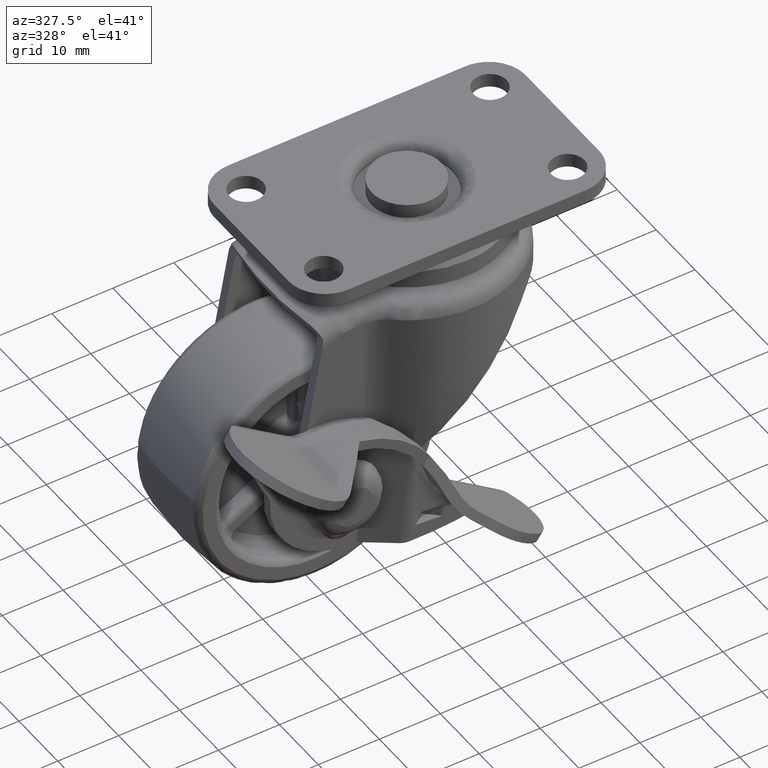
[diagram: clean part render]
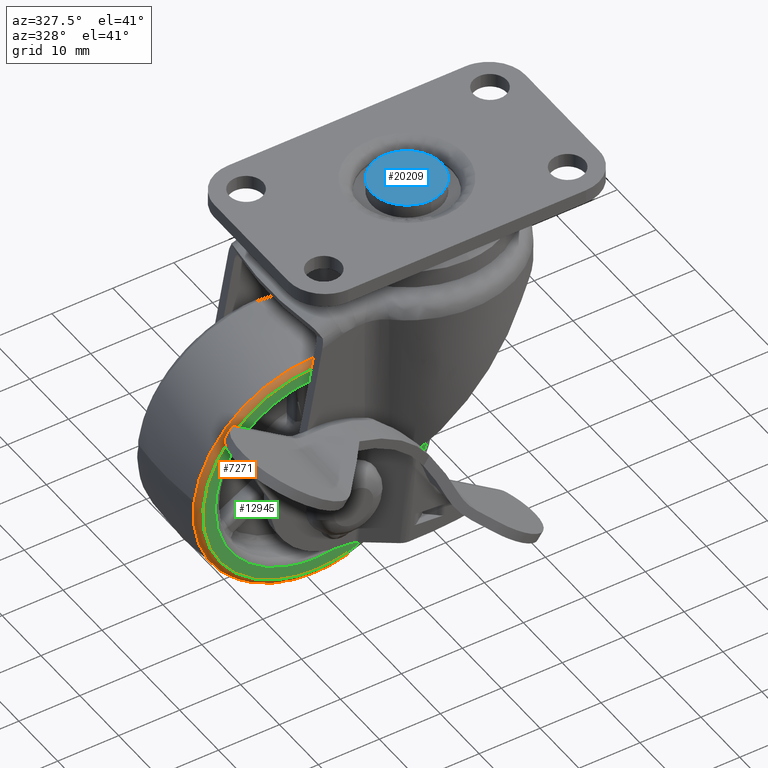
[diagram: same view with three faces highlighted in distinct colors, each labeled with its STEP entity id]
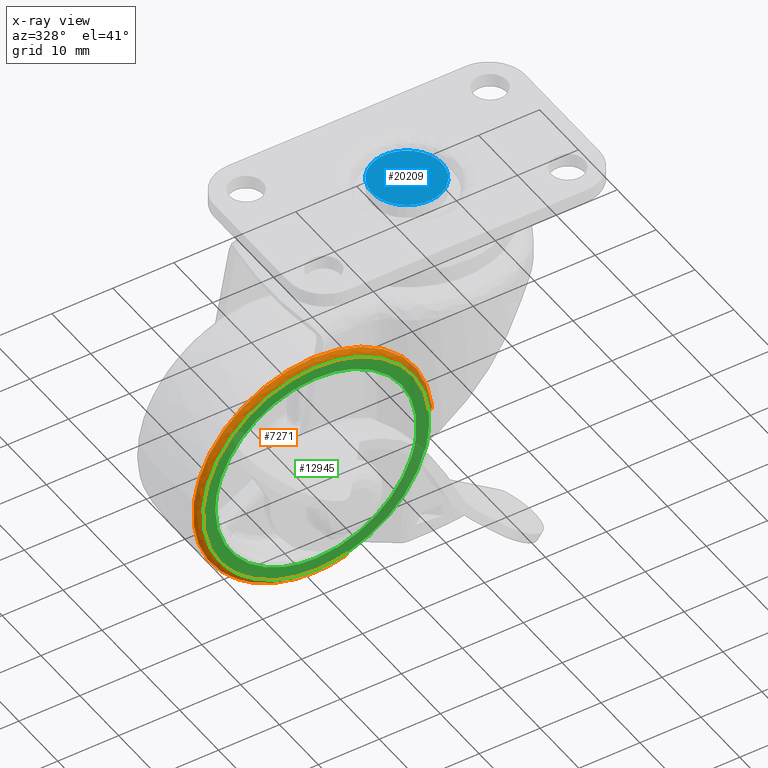
[diagram: x-ray of the same camera — body ghosted, the three highlighted faces saturated]
A machine part, auxiliary view with three faces highlighted in distinct colors.
The next image is the same camera in x-ray (body ghosted, the three faces saturated) — at least one of them is partly hidden behind the body in this view.
Their STEP definitions:

[orange] entity #7271 — the highlighted face is a freeform B-spline surface patch.
#7060=CARTESIAN_POINT('',(5.334080428898447,-7.118643946182971,-18.835489279828519));
#7061=VERTEX_POINT('',#7060);
#7062=CARTESIAN_POINT('',(19.477372109789901,-7.118640550551096,1.964702213886228));
#7063=VERTEX_POINT('',#7062);
#7079=CARTESIAN_POINT('',(18.489448367375530,-8.0,1.865049347464084));
#7080=VERTEX_POINT('',#7079);
#7081=CARTESIAN_POINT('',(19.477372109789894,-7.118640550551096,1.964702213886228));
#7082=CARTESIAN_POINT('',(19.372595250181757,-7.999999986974838,1.954133266103576));
#7083=CARTESIAN_POINT('',(18.489448367375523,-8.0,1.865049347464084));
#7091=(BOUNDED_CURVE()B_SPLINE_CURVE(2,(#7081,#7082,#7083),.UNSPECIFIED.,.F.,.U.)B_SPLINE_CURVE_WITH_KNOTS((3,3),(-1.712540999685724,-0.281180907090554),.UNSPECIFIED.)CURVE()GEOMETRIC_REPRESENTATION_ITEM()RATIONAL_B_SPLINE_CURVE((0.891826052472162,0.667714340473258,0.893800667576524))REPRESENTATION_ITEM(''));
#7092=EDGE_CURVE('',#7063,#7080,#7091,.T.);
#7094=CARTESIAN_POINT('',(5.063527322781634,-7.999999999999999,-17.880123082289401));
#7095=VERTEX_POINT('',#7094);
#7111=CARTESIAN_POINT('',(5.334080428898447,-7.118643946182971,-18.835489279828519));
#7112=CARTESIAN_POINT('',(5.305385431726719,-7.999999968439647,-18.734162665327776));
#7113=CARTESIAN_POINT('',(5.063527322781634,-7.999999999999999,-17.880123082289394));
#7121=(BOUNDED_CURVE()B_SPLINE_CURVE(2,(#7111,#7112,#7113),.UNSPECIFIED.,.F.,.U.)B_SPLINE_CURVE_WITH_KNOTS((3,3),(-1.712537340518268,-0.281180929628065),.UNSPECIFIED.)CURVE()GEOMETRIC_REPRESENTATION_ITEM()RATIONAL_B_SPLINE_CURVE((0.836657467084603,0.626410712690983,0.838511002665981))REPRESENTATION_ITEM(''));
#7122=EDGE_CURVE('',#7061,#7095,#7121,.T.);
#7127=CARTESIAN_POINT('',(19.482982600528789,-7.053347020287806,1.965268149720584));
#7128=CARTESIAN_POINT('',(17.517714450808214,-7.053347020287806,21.448250750249379));
#7129=CARTESIAN_POINT('',(-1.965268149720583,-7.053347020287806,19.482982600528789));
#7130=CARTESIAN_POINT('',(-21.448250750249379,-7.053347020287806,17.517714450808214));
#7131=CARTESIAN_POINT('',(-19.482982600528789,-7.053347020287806,-1.965268149720582));
#7132=CARTESIAN_POINT('',(-17.517714450808214,-7.053347020287806,-21.448250750249379));
#7133=CARTESIAN_POINT('',(1.965268149720580,-7.053347020287806,-19.482982600528789));
#7134=CARTESIAN_POINT('',(3.678675490407687,-7.053347020287807,-19.310149470037867));
#7135=CARTESIAN_POINT('',(5.335616980266724,-7.053347020287807,-18.840915087986126));
#7136=CARTESIAN_POINT('',(19.429262909502548,-8.064001668379472,1.959849390183024));
#7137=CARTESIAN_POINT('',(17.469413519319527,-8.064001668379474,21.389112299685568));
#7138=CARTESIAN_POINT('',(-1.959849390183022,-8.064001668379472,19.429262909502548));
#7139=CARTESIAN_POINT('',(-21.389112299685568,-8.064001668379474,17.469413519319531));
#7140=CARTESIAN_POINT('',(-19.429262909502548,-8.064001668379472,-1.959849390183022));
#7141=CARTESIAN_POINT('',(-17.469413519319531,-8.064001668379474,-21.389112299685564));
#7142=CARTESIAN_POINT('',(1.959849390183021,-8.064001668379472,-19.429262909502548));
#7143=CARTESIAN_POINT('',(3.668532417615270,-8.064001668379470,-19.256906325265309));
#7144=CARTESIAN_POINT('',(5.320905285374250,-8.064001668379472,-18.788965745427515));
#7145=CARTESIAN_POINT('',(18.424429571099235,-7.997862487024934,1.858490835580207));
#7146=CARTESIAN_POINT('',(16.565938735519033,-7.997862487024936,20.282920406679448));
#7147=CARTESIAN_POINT('',(-1.858490835580206,-7.997862487024934,18.424429571099235));
#7148=CARTESIAN_POINT('',(-20.282920406679448,-7.997862487024936,16.565938735519033));
#7149=CARTESIAN_POINT('',(-18.424429571099235,-7.997862487024934,-1.858490835580204));
#7150=CARTESIAN_POINT('',(-16.565938735519033,-7.997862487024936,-20.282920406679430));
#7151=CARTESIAN_POINT('',(1.858490835580203,-7.997862487024934,-18.424429571099235));
#7152=CARTESIAN_POINT('',(3.478805010384076,-7.997862487024933,-18.260986842356232));
#7153=CARTESIAN_POINT('',(5.045721247455061,-7.997862487024934,-17.817246989905936));
#7161=(BOUNDED_SURFACE()B_SPLINE_SURFACE(2,2,((#7127,#7136,#7145),(#7128,#7137,#7146),(#7129,#7138,#7147),(#7130,#7139,#7148),(#7131,#7140,#7149),(#7132,#7141,#7150),(#7133,#7142,#7151),(#7134,#7143,#7152),(#7135,#7144,#7153)),.UNSPECIFIED.,.F.,.F.,.U.)B_SPLINE_SURFACE_WITH_KNOTS((3,2,2,2,3),(3,3),(0.0,32.444273098400117,64.888546196800235,97.332819295200352,101.226132067008390),(0.0,1.670956958326286),.UNSPECIFIED.)GEOMETRIC_REPRESENTATION_ITEM()RATIONAL_B_SPLINE_SURFACE(((0.915339622459728,0.644102691094215,0.917510387398787),(0.647242854130008,0.455449380653223,0.648777816738779),(0.915339622459728,0.644102691094215,0.917510387398787),(0.647242854130008,0.455449380653223,0.648777816738779),(0.915339622459728,0.644102691094215,0.917510387398787),(0.647242854130008,0.455449380653223,0.648777816738779),(0.915339622459728,0.644102691094215,0.917510387398787),(0.883168010260161,0.621464293841296,0.885262478919586),(0.858717584988491,0.604259111929078,0.860754068475393)))REPRESENTATION_ITEM('')SURFACE());
#7162=CARTESIAN_POINT('',(0.0,-7.118644065926700,-19.576211848757548));
#7163=VERTEX_POINT('',#7162);
#7164=CARTESIAN_POINT('',(0.0,-7.118644065926700,-19.576211848757548));
#7165=CARTESIAN_POINT('',(2.718470814018492,-7.118644065926700,-19.576211848757552));
#7166=CARTESIAN_POINT('',(5.334080428898445,-7.118643946182971,-18.835489279828511));
#7174=(BOUNDED_CURVE()B_SPLINE_CURVE(2,(#7164,#7165,#7166),.UNSPECIFIED.,.F.,.U.)B_SPLINE_CURVE_WITH_KNOTS((3,3),(0.0,0.046426116433993),.UNSPECIFIED.)CURVE()GEOMETRIC_REPRESENTATION_ITEM()RATIONAL_B_SPLINE_CURVE((1.0,0.945608421282558,0.911418360697634))REPRESENTATION_ITEM(''));
#7175=EDGE_CURVE('',#7163,#7061,#7174,.T.);
#7176=ORIENTED_EDGE('',*,*,#7175,.T.);
#7177=ORIENTED_EDGE('',*,*,#7122,.T.);
#7178=CARTESIAN_POINT('',(0.0,-8.0,-18.583275000000100));
#7179=VERTEX_POINT('',#7178);
#7180=CARTESIAN_POINT('',(0.0,-8.0,-18.583275000000100));
#7181=CARTESIAN_POINT('',(2.580585617878365,-8.0,-18.583275000000100));
#7182=CARTESIAN_POINT('',(5.063527322781634,-7.999999999999999,-17.880123082289394));
#7190=(BOUNDED_CURVE()B_SPLINE_CURVE(2,(#7180,#7181,#7182),.UNSPECIFIED.,.F.,.U.)B_SPLINE_CURVE_WITH_KNOTS((3,3),(0.0,0.046426116462726),.UNSPECIFIED.)CURVE()GEOMETRIC_REPRESENTATION_ITEM()RATIONAL_B_SPLINE_CURVE((1.0,0.945608421248895,0.911418360655313))REPRESENTATION_ITEM(''));
#7191=EDGE_CURVE('',#7179,#7095,#7190,.T.);
#7192=ORIENTED_EDGE('',*,*,#7191,.F.);
#7193=CARTESIAN_POINT('',(0.0,-8.0,18.583275000000100));
#7194=VERTEX_POINT('',#7193);
#7195=CARTESIAN_POINT('',(0.0,-8.0,18.583275000000100));
#7196=CARTESIAN_POINT('',(-18.583275000000100,-8.0,18.583275000000100));
#7197=CARTESIAN_POINT('',(-18.583275000000100,-8.0,1.181745E-015));
#7198=CARTESIAN_POINT('',(-18.583275000000100,-8.0,-18.583275000000100));
#7199=CARTESIAN_POINT('',(0.0,-8.0,-18.583275000000100));
#7207=(BOUNDED_CURVE()B_SPLINE_CURVE(2,(#7195,#7196,#7197,#7198,#7199),.UNSPECIFIED.,.F.,.U.)B_SPLINE_CURVE_WITH_KNOTS((3,2,3),(0.500000000000000,0.750000000000000,1.0),.UNSPECIFIED.)CURVE()GEOMETRIC_REPRESENTATION_ITEM()RATIONAL_B_SPLINE_CURVE((1.0,0.707106781186548,1.0,0.707106781186548,1.0))REPRESENTATION_ITEM(''));
#7208=EDGE_CURVE('',#7194,#7179,#7207,.T.);
#7209=ORIENTED_EDGE('',*,*,#7208,.F.);
#7210=CARTESIAN_POINT('',(18.489448367375523,-8.0,1.865049347464084));
#7211=CARTESIAN_POINT('',(16.803064038119064,-8.0,18.583275000000100));
#7212=CARTESIAN_POINT('',(0.0,-8.0,18.583275000000100));
#7220=(BOUNDED_CURVE()B_SPLINE_CURVE(2,(#7210,#7211,#7212),.UNSPECIFIED.,.F.,.U.)B_SPLINE_CURVE_WITH_KNOTS((3,3),(0.267423441085373,0.500000000000000),.UNSPECIFIED.)CURVE()GEOMETRIC_REPRESENTATION_ITEM()RATIONAL_B_SPLINE_CURVE((0.962019632123811,0.727519612155753,1.0))REPRESENTATION_ITEM(''));
#7221=EDGE_CURVE('',#7080,#7194,#7220,.T.);
#7222=ORIENTED_EDGE('',*,*,#7221,.F.);
#7223=ORIENTED_EDGE('',*,*,#7092,.F.);
#7224=CARTESIAN_POINT('',(0.0,-7.118637633312382,19.576212383253338));
#7225=VERTEX_POINT('',#7224);
#7226=CARTESIAN_POINT('',(19.477372109789901,-7.118640550551096,1.964702213886228));
#7227=CARTESIAN_POINT('',(17.700881371272875,-7.118637633312382,19.576212383253338));
#7228=CARTESIAN_POINT('',(0.0,-7.118637633312382,19.576212383253338));
#7236=(BOUNDED_CURVE()B_SPLINE_CURVE(2,(#7226,#7227,#7228),.UNSPECIFIED.,.F.,.U.)B_SPLINE_CURVE_WITH_KNOTS((3,3),(0.267423438541047,0.500000000000000),.UNSPECIFIED.)CURVE()GEOMETRIC_REPRESENTATION_ITEM()RATIONAL_B_SPLINE_CURVE((0.962019637254545,0.727519609174890,1.0))REPRESENTATION_ITEM(''));
#7237=EDGE_CURVE('',#7063,#7225,#7236,.T.);
#7238=ORIENTED_EDGE('',*,*,#7237,.T.);
#7239=CARTESIAN_POINT('',(-19.445281321579230,-7.118636615236500,2.260336522504607));
#7240=VERTEX_POINT('',#7239);
#7241=CARTESIAN_POINT('',(0.0,-7.118637633312382,19.576212383253338));
#7242=CARTESIAN_POINT('',(-17.432468600714977,-7.118637124274442,19.576212140369073));
#7243=CARTESIAN_POINT('',(-19.445281321579234,-7.118636615236500,2.260336522504607));
#7251=(BOUNDED_CURVE()B_SPLINE_CURVE(2,(#7241,#7242,#7243),.UNSPECIFIED.,.F.,.U.)B_SPLINE_CURVE_WITH_KNOTS((3,3),(0.500000000000000,0.730000136927027),.UNSPECIFIED.)CURVE()GEOMETRIC_REPRESENTATION_ITEM()RATIONAL_B_SPLINE_CURVE((1.0,0.730538078271633,0.956886387696420))REPRESENTATION_ITEM(''));
#7252=EDGE_CURVE('',#7225,#7240,#7251,.T.);
#7253=ORIENTED_EDGE('',*,*,#7252,.T.);
#7254=CARTESIAN_POINT('',(-19.445281321579234,-7.118636615236500,2.260336522504607));
#7255=CARTESIAN_POINT('',(-19.576212257138096,-7.118636807397811,1.133960399585470));
#7256=CARTESIAN_POINT('',(-19.576212244997159,-7.118637023190003,0.000000046059242));
#7257=CARTESIAN_POINT('',(-19.576212035401181,-7.118640748535102,-19.576211827061929));
#7258=CARTESIAN_POINT('',(0.0,-7.118644065926700,-19.576211848757548));
#7266=(BOUNDED_CURVE()B_SPLINE_CURVE(2,(#7254,#7255,#7256,#7257,#7258),.UNSPECIFIED.,.F.,.U.)B_SPLINE_CURVE_WITH_KNOTS((3,2,3),(0.730000136927027,0.750000000000000,1.0),.UNSPECIFIED.)CURVE()GEOMETRIC_REPRESENTATION_ITEM()RATIONAL_B_SPLINE_CURVE((0.956886387696420,0.976568702914915,1.0,0.707106781186547,1.0))REPRESENTATION_ITEM(''));
#7267=EDGE_CURVE('',#7240,#7163,#7266,.T.);
#7268=ORIENTED_EDGE('',*,*,#7267,.T.);
#7269=EDGE_LOOP('',(#7176,#7177,#7192,#7209,#7222,#7223,#7238,#7253,#7268));
#7270=FACE_OUTER_BOUND('',#7269,.T.);
#7271=ADVANCED_FACE('',(#7270),#7161,.T.);

[blue] entity #20209 — the highlighted face is a freeform B-spline surface patch.
#19450=CARTESIAN_POINT('',(19.321303150661560,5.709804776583702,38.0));
#19451=VERTEX_POINT('',#19450);
#19452=CARTESIAN_POINT('',(25.750000000000000,0.0,38.0));
#19453=VERTEX_POINT('',#19452);
#19454=CARTESIAN_POINT('',(19.321303150661560,5.709804776583702,38.0));
#19455=CARTESIAN_POINT('',(19.659461311938781,5.750000000000000,38.0));
#19456=CARTESIAN_POINT('',(20.0,5.750000000000000,38.0));
#19457=CARTESIAN_POINT('',(25.750000000000000,5.750000000000000,38.0));
#19458=CARTESIAN_POINT('',(25.750000000000000,0.0,38.0));
#19466=(BOUNDED_CURVE()B_SPLINE_CURVE(2,(#19454,#19455,#19456,#19457,#19458),.UNSPECIFIED.,.F.,.U.)B_SPLINE_CURVE_WITH_KNOTS((3,2,3),(0.229562473511969,0.250000000000000,0.500000000000000),.UNSPECIFIED.)CURVE()GEOMETRIC_REPRESENTATION_ITEM()RATIONAL_B_SPLINE_CURVE((0.956026754180682,0.976055948329342,1.0,0.707106781186548,1.0))REPRESENTATION_ITEM(''));
#19467=EDGE_CURVE('',#19451,#19453,#19466,.T.);
#19469=CARTESIAN_POINT('',(20.351029102445668,-5.739275090918380,38.0));
#19470=VERTEX_POINT('',#19469);
#19471=CARTESIAN_POINT('',(25.750000000000000,0.0,38.0));
#19472=CARTESIAN_POINT('',(25.749999999999996,-5.409059884480713,38.0));
#19473=CARTESIAN_POINT('',(20.351029102445668,-5.739275090918381,38.0));
#19481=(BOUNDED_CURVE()B_SPLINE_CURVE(2,(#19471,#19472,#19473),.UNSPECIFIED.,.F.,.U.)B_SPLINE_CURVE_WITH_KNOTS((3,3),(0.500000000000000,0.739332962234740),.UNSPECIFIED.)CURVE()GEOMETRIC_REPRESENTATION_ITEM()RATIONAL_B_SPLINE_CURVE((1.0,0.719603993291635,0.976072041657709))REPRESENTATION_ITEM(''));
#19482=EDGE_CURVE('',#19453,#19470,#19481,.T.);
#19549=CARTESIAN_POINT('',(14.250000000000000,0.0,38.0));
#19550=VERTEX_POINT('',#19549);
#19551=CARTESIAN_POINT('',(14.250000000000000,0.0,38.0));
#19552=CARTESIAN_POINT('',(14.250000000000009,5.107003524108524,38.0));
#19553=CARTESIAN_POINT('',(19.321303150661564,5.709804776583702,38.000000000000007));
#19561=(BOUNDED_CURVE()B_SPLINE_CURVE(2,(#19551,#19552,#19553),.UNSPECIFIED.,.F.,.U.)B_SPLINE_CURVE_WITH_KNOTS((3,3),(0.0,0.229562473511969),.UNSPECIFIED.)CURVE()GEOMETRIC_REPRESENTATION_ITEM()RATIONAL_B_SPLINE_CURVE((1.0,0.731050832857206,0.956026754180682))REPRESENTATION_ITEM(''));
#19562=EDGE_CURVE('',#19550,#19451,#19561,.T.);
#19596=CARTESIAN_POINT('',(20.351029102445661,-5.739275090918380,38.000000000000007));
#19597=CARTESIAN_POINT('',(20.175678389087466,-5.750000000000000,38.0));
#19598=CARTESIAN_POINT('',(20.0,-5.750000000000000,38.0));
#19599=CARTESIAN_POINT('',(14.249999999999996,-5.750000000000000,38.0));
#19600=CARTESIAN_POINT('',(14.250000000000000,0.0,38.0));
#19608=(BOUNDED_CURVE()B_SPLINE_CURVE(2,(#19596,#19597,#19598,#19599,#19600),.UNSPECIFIED.,.F.,.U.)B_SPLINE_CURVE_WITH_KNOTS((3,2,3),(0.739332962234739,0.750000000000000,1.0),.UNSPECIFIED.)CURVE()GEOMETRIC_REPRESENTATION_ITEM()RATIONAL_B_SPLINE_CURVE((0.976072041657707,0.987502787894912,1.0,0.707106781186548,1.0))REPRESENTATION_ITEM(''));
#19609=EDGE_CURVE('',#19470,#19550,#19608,.T.);
#20198=CARTESIAN_POINT('',(13.675575022289230,-6.324285135775372,38.0));
#20199=CARTESIAN_POINT('',(26.324425286164811,-6.324285135775372,38.0));
#20200=CARTESIAN_POINT('',(13.675575022289230,6.324320402353572,38.0));
#20201=CARTESIAN_POINT('',(26.324425286164811,6.324320402353572,38.0));
#20202=B_SPLINE_SURFACE_WITH_KNOTS('',1,1,((#20198,#20200),(#20199,#20201)),.UNSPECIFIED.,.F.,.F.,.U.,(2,2),(2,2),(0.0,12.648850263875580),(0.0,12.648605538128940),.UNSPECIFIED.);
#20203=ORIENTED_EDGE('',*,*,#19609,.F.);
#20204=ORIENTED_EDGE('',*,*,#19482,.F.);
#20205=ORIENTED_EDGE('',*,*,#19467,.F.);
#20206=ORIENTED_EDGE('',*,*,#19562,.F.);
#20207=EDGE_LOOP('',(#20203,#20204,#20205,#20206));
#20208=FACE_OUTER_BOUND('',#20207,.T.);
#20209=ADVANCED_FACE('',(#20208),#20202,.T.);

[green] entity #12945 — the highlighted face is a freeform B-spline surface patch.
#7079=CARTESIAN_POINT('',(18.489448367375530,-8.0,1.865049347464084));
#7080=VERTEX_POINT('',#7079);
#7094=CARTESIAN_POINT('',(5.063527322781634,-7.999999999999999,-17.880123082289401));
#7095=VERTEX_POINT('',#7094);
#7096=CARTESIAN_POINT('',(5.063527322781634,-7.999999999999999,-17.880123082289394));
#7097=CARTESIAN_POINT('',(18.583275000000103,-8.0,-14.051423929542050));
#7098=CARTESIAN_POINT('',(18.583275000000100,-8.0,1.181745E-015));
#7099=CARTESIAN_POINT('',(18.583275000000096,-8.0,0.934884782147503));
#7100=CARTESIAN_POINT('',(18.489448367375530,-8.0,1.865049347464085));
#7108=(BOUNDED_CURVE()B_SPLINE_CURVE(2,(#7096,#7097,#7098,#7099,#7100),.UNSPECIFIED.,.F.,.U.)B_SPLINE_CURVE_WITH_KNOTS((3,2,3),(0.046426116462726,0.250000000000000,0.267423441085372),.UNSPECIFIED.)CURVE()GEOMETRIC_REPRESENTATION_ITEM()RATIONAL_B_SPLINE_CURVE((0.911418360655313,0.761498359937652,1.0,0.979587169030795,0.962019632123811))REPRESENTATION_ITEM(''));
#7109=EDGE_CURVE('',#7095,#7080,#7108,.T.);
#7178=CARTESIAN_POINT('',(0.0,-8.0,-18.583275000000100));
#7179=VERTEX_POINT('',#7178);
#7180=CARTESIAN_POINT('',(0.0,-8.0,-18.583275000000100));
#7181=CARTESIAN_POINT('',(2.580585617878365,-8.0,-18.583275000000100));
#7182=CARTESIAN_POINT('',(5.063527322781634,-7.999999999999999,-17.880123082289394));
#7190=(BOUNDED_CURVE()B_SPLINE_CURVE(2,(#7180,#7181,#7182),.UNSPECIFIED.,.F.,.U.)B_SPLINE_CURVE_WITH_KNOTS((3,3),(0.0,0.046426116462726),.UNSPECIFIED.)CURVE()GEOMETRIC_REPRESENTATION_ITEM()RATIONAL_B_SPLINE_CURVE((1.0,0.945608421248895,0.911418360655313))REPRESENTATION_ITEM(''));
#7191=EDGE_CURVE('',#7179,#7095,#7190,.T.);
#7193=CARTESIAN_POINT('',(0.0,-8.0,18.583275000000100));
#7194=VERTEX_POINT('',#7193);
#7195=CARTESIAN_POINT('',(0.0,-8.0,18.583275000000100));
#7196=CARTESIAN_POINT('',(-18.583275000000100,-8.0,18.583275000000100));
#7197=CARTESIAN_POINT('',(-18.583275000000100,-8.0,1.181745E-015));
#7198=CARTESIAN_POINT('',(-18.583275000000100,-8.0,-18.583275000000100));
#7199=CARTESIAN_POINT('',(0.0,-8.0,-18.583275000000100));
#7207=(BOUNDED_CURVE()B_SPLINE_CURVE(2,(#7195,#7196,#7197,#7198,#7199),.UNSPECIFIED.,.F.,.U.)B_SPLINE_CURVE_WITH_KNOTS((3,2,3),(0.500000000000000,0.750000000000000,1.0),.UNSPECIFIED.)CURVE()GEOMETRIC_REPRESENTATION_ITEM()RATIONAL_B_SPLINE_CURVE((1.0,0.707106781186548,1.0,0.707106781186548,1.0))REPRESENTATION_ITEM(''));
#7208=EDGE_CURVE('',#7194,#7179,#7207,.T.);
#7210=CARTESIAN_POINT('',(18.489448367375523,-8.0,1.865049347464084));
#7211=CARTESIAN_POINT('',(16.803064038119064,-8.0,18.583275000000100));
#7212=CARTESIAN_POINT('',(0.0,-8.0,18.583275000000100));
#7220=(BOUNDED_CURVE()B_SPLINE_CURVE(2,(#7210,#7211,#7212),.UNSPECIFIED.,.F.,.U.)B_SPLINE_CURVE_WITH_KNOTS((3,3),(0.267423441085373,0.500000000000000),.UNSPECIFIED.)CURVE()GEOMETRIC_REPRESENTATION_ITEM()RATIONAL_B_SPLINE_CURVE((0.962019632123811,0.727519612155753,1.0))REPRESENTATION_ITEM(''));
#7221=EDGE_CURVE('',#7080,#7194,#7220,.T.);
#7301=CARTESIAN_POINT('',(16.389642036972869,-8.0,-1.905159783763324));
#7302=VERTEX_POINT('',#7301);
#7303=CARTESIAN_POINT('',(0.0,-8.0,16.500000000000000));
#7304=VERTEX_POINT('',#7303);
#7305=CARTESIAN_POINT('',(16.389642036972873,-8.0,-1.905159783763324));
#7306=CARTESIAN_POINT('',(16.500000000000004,-8.0,-0.955776180327373));
#7307=CARTESIAN_POINT('',(16.500000000000000,-8.0,1.181745E-015));
#7308=CARTESIAN_POINT('',(16.499999999999993,-8.0,16.499999999999993));
#7309=CARTESIAN_POINT('',(0.0,-8.0,16.500000000000000));
#7317=(BOUNDED_CURVE()B_SPLINE_CURVE(2,(#7305,#7306,#7307,#7308,#7309),.UNSPECIFIED.,.F.,.U.)B_SPLINE_CURVE_WITH_KNOTS((3,2,3),(0.229999999995660,0.250000000000000,0.500000000000000),.UNSPECIFIED.)CURVE()GEOMETRIC_REPRESENTATION_ITEM()RATIONAL_B_SPLINE_CURVE((0.956886118182117,0.976568542489839,1.0,0.707106781186548,1.0))REPRESENTATION_ITEM(''));
#7318=EDGE_CURVE('',#7302,#7304,#7317,.T.);
#7320=CARTESIAN_POINT('',(-16.499999998846341,-8.0,1.243377E-014));
#7321=VERTEX_POINT('',#7320);
#7322=CARTESIAN_POINT('',(0.0,-8.0,16.500000000000000));
#7323=CARTESIAN_POINT('',(-16.499999999999911,-8.0,16.500000000000000));
#7324=CARTESIAN_POINT('',(-16.499999998846341,-8.0,1.243377E-014));
#7332=(BOUNDED_CURVE()B_SPLINE_CURVE(2,(#7322,#7323,#7324),.UNSPECIFIED.,.F.,.U.)B_SPLINE_CURVE_WITH_KNOTS((3,3),(0.500000000000000,0.749999999999999),.UNSPECIFIED.)CURVE()GEOMETRIC_REPRESENTATION_ITEM()RATIONAL_B_SPLINE_CURVE((1.0,0.707106781186549,0.999999999999998))REPRESENTATION_ITEM(''));
#7333=EDGE_CURVE('',#7304,#7321,#7332,.T.);
#7391=CARTESIAN_POINT('',(0.0,-8.0,-16.500000000000000));
#7392=VERTEX_POINT('',#7391);
#7393=CARTESIAN_POINT('',(0.0,-8.0,-16.500000000000000));
#7394=CARTESIAN_POINT('',(14.693113063264999,-8.0,-16.500000000000000));
#7395=CARTESIAN_POINT('',(16.389642036972877,-8.000000000000002,-1.905159783763323));
#7403=(BOUNDED_CURVE()B_SPLINE_CURVE(2,(#7393,#7394,#7395),.UNSPECIFIED.,.F.,.U.)B_SPLINE_CURVE_WITH_KNOTS((3,3),(0.0,0.229999999995659),.UNSPECIFIED.)CURVE()GEOMETRIC_REPRESENTATION_ITEM()RATIONAL_B_SPLINE_CURVE((1.0,0.730538238696709,0.956886118182116))REPRESENTATION_ITEM(''));
#7404=EDGE_CURVE('',#7392,#7302,#7403,.T.);
#7410=CARTESIAN_POINT('',(-16.499999998846349,-8.000000000000004,1.243377E-014));
#7411=CARTESIAN_POINT('',(-16.500000000000011,-8.0,-16.500000000000000));
#7412=CARTESIAN_POINT('',(0.0,-8.0,-16.500000000000000));
#7420=(BOUNDED_CURVE()B_SPLINE_CURVE(2,(#7410,#7411,#7412),.UNSPECIFIED.,.F.,.U.)B_SPLINE_CURVE_WITH_KNOTS((3,3),(0.750000000000000,1.0),.UNSPECIFIED.)CURVE()GEOMETRIC_REPRESENTATION_ITEM()RATIONAL_B_SPLINE_CURVE((1.0,0.707106781186547,1.0))REPRESENTATION_ITEM(''));
#7421=EDGE_CURVE('',#7321,#7392,#7420,.T.);
#12928=CARTESIAN_POINT('',(-20.439717910801960,-8.0,20.439744100464129));
#12929=CARTESIAN_POINT('',(-20.439717910801960,-8.0,-20.439745097348681));
#12930=CARTESIAN_POINT('',(20.439194589549139,-8.0,20.439744100464129));
#12931=CARTESIAN_POINT('',(20.439194589549139,-8.0,-20.439745097348681));
#12932=B_SPLINE_SURFACE_WITH_KNOTS('',1,1,((#12928,#12930),(#12929,#12931)),.UNSPECIFIED.,.F.,.F.,.U.,(2,2),(2,2),(0.0,40.879489197812823),(0.0,40.878912500351113),.UNSPECIFIED.);
#12933=ORIENTED_EDGE('',*,*,#7191,.T.);
#12934=ORIENTED_EDGE('',*,*,#7109,.T.);
#12935=ORIENTED_EDGE('',*,*,#7221,.T.);
#12936=ORIENTED_EDGE('',*,*,#7208,.T.);
#12937=EDGE_LOOP('',(#12933,#12934,#12935,#12936));
#12938=FACE_OUTER_BOUND('',#12937,.T.);
#12939=ORIENTED_EDGE('',*,*,#7333,.F.);
#12940=ORIENTED_EDGE('',*,*,#7318,.F.);
#12941=ORIENTED_EDGE('',*,*,#7404,.F.);
#12942=ORIENTED_EDGE('',*,*,#7421,.F.);
#12943=EDGE_LOOP('',(#12939,#12940,#12941,#12942));
#12944=FACE_BOUND('',#12943,.T.);
#12945=ADVANCED_FACE('',(#12938,#12944),#12932,.T.);